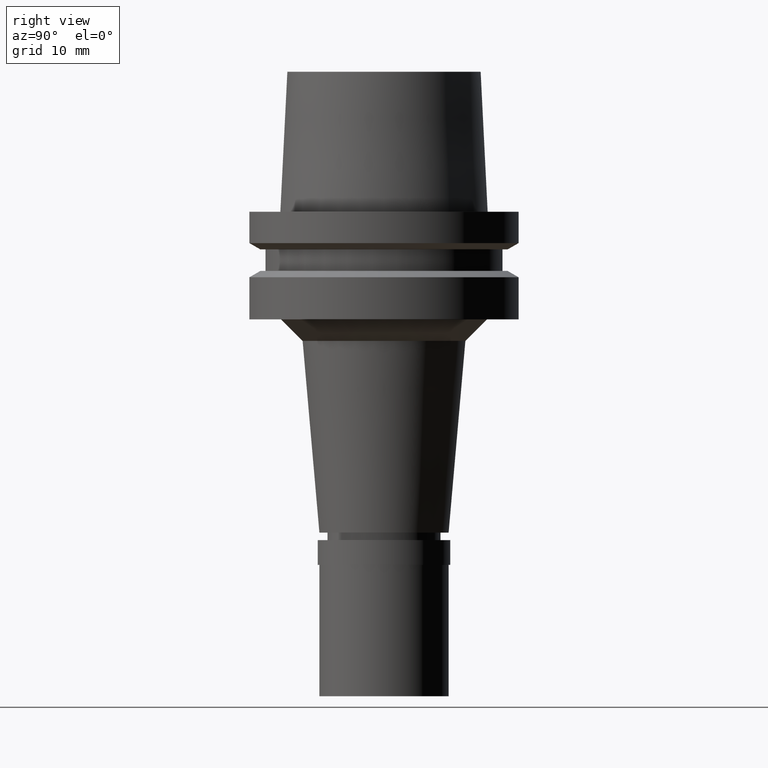
[diagram: clean part render]
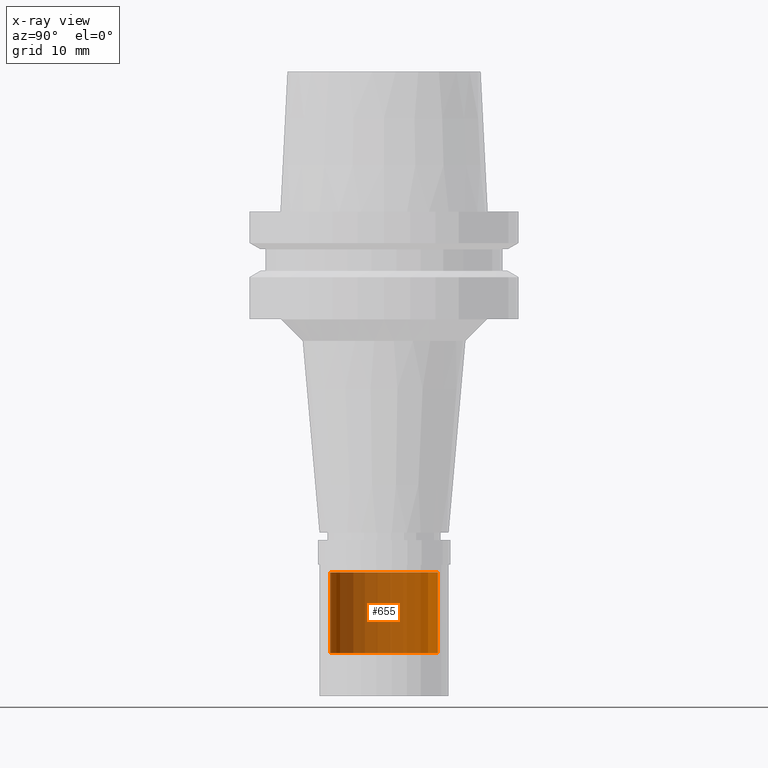
[diagram: x-ray — body ghosted, one internal face saturated and labeled with its STEP entity id]
A machine part, right view, then the same camera in x-ray: the body is ghosted and one INTERNAL B-rep face — a face not visible from any outside direction — is saturated and labeled: STEP entity #655.
In plain terms, the highlighted cylindrical surface (partial cylindrical patch) has radius 5 mm, axis along (0, 0, 1).
Its self-contained STEP definition (entity closure, byte-faithful):
#59 = CARTESIAN_POINT ( 'NONE',  ( 0.0000000000000000000, -5.000000000000000000, -33.50000000000000000 ) ) ;
#524 = CARTESIAN_POINT ( 'NONE',  ( 0.0000000000000000000, 0.0000000000000000000, -33.50000000000000000 ) ) ;
#558 = EDGE_CURVE ( 'NONE', #1303, #1655, #2657, .T. ) ;
#654 = CARTESIAN_POINT ( 'NONE',  ( 0.0000000000000000000, 0.0000000000000000000, -41.00000000000000000 ) ) ;
#655 = ADVANCED_FACE ( 'NONE', ( #1061 ), #1494, .T. ) ;
#723 = CIRCLE ( 'NONE', #2251, 5.000000000000000000 ) ;
#783 = ORIENTED_EDGE ( 'NONE', *, *, #558, .T. ) ;
#816 = ORIENTED_EDGE ( 'NONE', *, *, #2027, .F. ) ;
#886 = ORIENTED_EDGE ( 'NONE', *, *, #2050, .T. ) ;
#1061 = FACE_OUTER_BOUND ( 'NONE', #2652, .T. ) ;
#1119 = CIRCLE ( 'NONE', #1203, 5.000000000000000000 ) ;
#1133 = DIRECTION ( 'NONE',  ( 0.0000000000000000000, -1.000000000000000000, 0.0000000000000000000 ) ) ;
#1203 = AXIS2_PLACEMENT_3D ( 'NONE', #654, #1751, #2335 ) ;
#1213 = VECTOR ( 'NONE', #2250, 1000.000000000000000 ) ;
#1263 = VERTEX_POINT ( 'NONE', #1304 ) ;
#1303 = VERTEX_POINT ( 'NONE', #1904 ) ;
#1304 = CARTESIAN_POINT ( 'NONE',  ( 0.0000000000000000000, -5.000000000000000000, -41.00000000000000000 ) ) ;
#1356 = EDGE_CURVE ( 'NONE', #1655, #1263, #1119, .T. ) ;
#1459 = AXIS2_PLACEMENT_3D ( 'NONE', #2308, #2113, #2569 ) ;
#1494 = CYLINDRICAL_SURFACE ( 'NONE', #1459, 5.000000000000000000 ) ;
#1563 = CARTESIAN_POINT ( 'NONE',  ( 0.0000000000000000000, -5.000000000000000000, -33.50000000000000000 ) ) ;
#1635 = ORIENTED_EDGE ( 'NONE', *, *, #1356, .T. ) ;
#1655 = VERTEX_POINT ( 'NONE', #2222 ) ;
#1751 = DIRECTION ( 'NONE',  ( 0.0000000000000000000, 0.0000000000000000000, 1.000000000000000000 ) ) ;
#1798 = DIRECTION ( 'NONE',  ( 0.0000000000000000000, 0.0000000000000000000, -1.000000000000000000 ) ) ;
#1904 = CARTESIAN_POINT ( 'NONE',  ( 0.0000000000000000000, 5.000000000000000000, -33.50000000000000000 ) ) ;
#1946 = LINE ( 'NONE', #1563, #2507 ) ;
#2027 = EDGE_CURVE ( 'NONE', #2625, #1263, #1946, .T. ) ;
#2050 = EDGE_CURVE ( 'NONE', #2625, #1303, #723, .T. ) ;
#2072 = CARTESIAN_POINT ( 'NONE',  ( 0.0000000000000000000, 5.000000000000000000, -33.50000000000000000 ) ) ;
#2113 = DIRECTION ( 'NONE',  ( 0.0000000000000000000, 0.0000000000000000000, 1.000000000000000000 ) ) ;
#2190 = DIRECTION ( 'NONE',  ( 0.0000000000000000000, 0.0000000000000000000, -1.000000000000000000 ) ) ;
#2222 = CARTESIAN_POINT ( 'NONE',  ( 0.0000000000000000000, 5.000000000000000000, -41.00000000000000000 ) ) ;
#2250 = DIRECTION ( 'NONE',  ( 0.0000000000000000000, 0.0000000000000000000, -1.000000000000000000 ) ) ;
#2251 = AXIS2_PLACEMENT_3D ( 'NONE', #524, #2190, #1133 ) ;
#2308 = CARTESIAN_POINT ( 'NONE',  ( 0.0000000000000000000, 0.0000000000000000000, -43.70000000000000284 ) ) ;
#2335 = DIRECTION ( 'NONE',  ( 0.0000000000000000000, 1.000000000000000000, 0.0000000000000000000 ) ) ;
#2507 = VECTOR ( 'NONE', #1798, 1000.000000000000000 ) ;
#2569 = DIRECTION ( 'NONE',  ( 0.0000000000000000000, 1.000000000000000000, 0.0000000000000000000 ) ) ;
#2625 = VERTEX_POINT ( 'NONE', #59 ) ;
#2652 = EDGE_LOOP ( 'NONE', ( #1635, #816, #886, #783 ) ) ;
#2657 = LINE ( 'NONE', #2072, #1213 ) ;